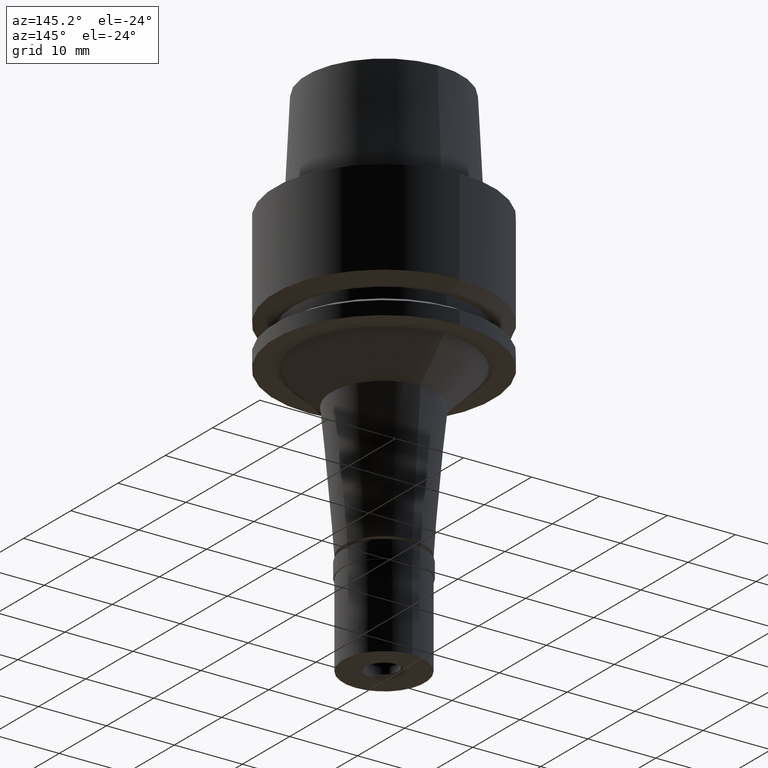
[diagram: clean part render]
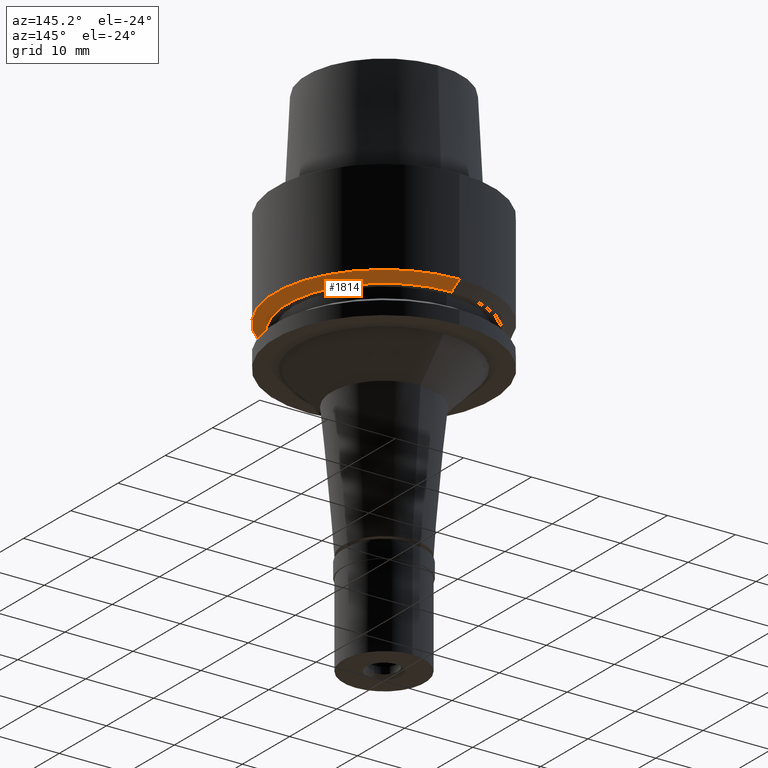
[diagram: same view with one face highlighted and labeled with its STEP entity id]
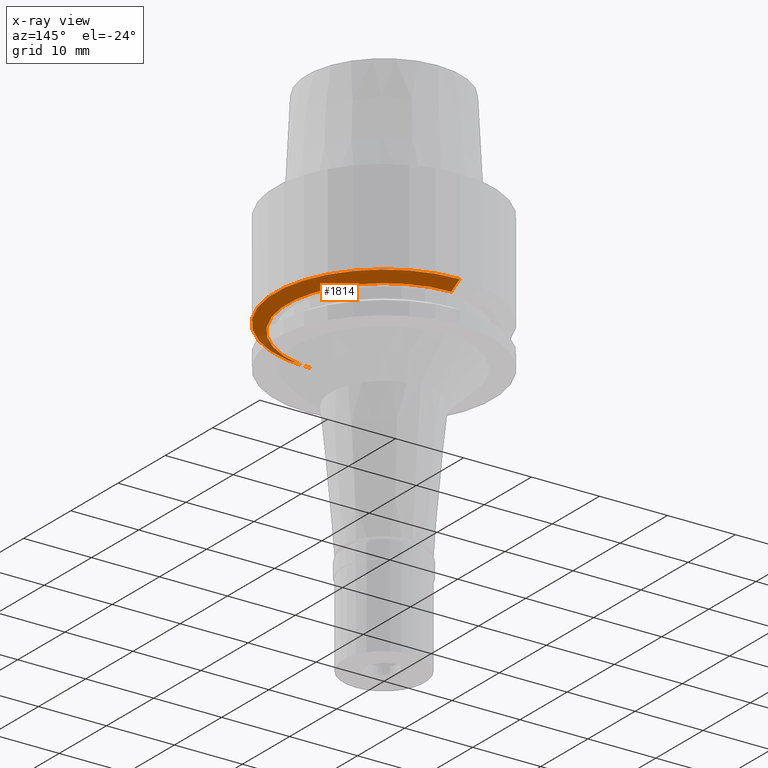
[diagram: x-ray of the same camera — body ghosted, the highlighted face saturated]
A machine part, auxiliary view. The second image highlights one B-rep face of the part: STEP entity #1814.
The next image is the same camera in x-ray: the body ghosted, the highlighted face saturated — about 5% of this face is hidden behind the body in this view.
In plain terms, the highlighted conical surface has half-angle 60 deg.
Its self-contained STEP definition (entity closure, byte-faithful):
#50 = EDGE_LOOP ( 'NONE', ( #1761, #742, #1051, #190 ) ) ;
#117 = CARTESIAN_POINT ( 'NONE',  ( 0.0000000000000000000, -14.23205080756999941, -15.00000000000000000 ) ) ;
#178 = FACE_OUTER_BOUND ( 'NONE', #50, .T. ) ;
#190 = ORIENTED_EDGE ( 'NONE', *, *, #2535, .F. ) ;
#223 = VERTEX_POINT ( 'NONE', #2178 ) ;
#371 = DIRECTION ( 'NONE',  ( 0.0000000000000000000, 0.0000000000000000000, 1.000000000000000000 ) ) ;
#435 = EDGE_CURVE ( 'NONE', #1391, #1539, #674, .T. ) ;
#600 = DIRECTION ( 'NONE',  ( 0.0000000000000000000, 1.000000000000000000, 0.0000000000000000000 ) ) ;
#674 = CIRCLE ( 'NONE', #2461, 14.23205080756999941 ) ;
#712 = CARTESIAN_POINT ( 'NONE',  ( 0.0000000000000000000, 16.00000000000000000, -13.97927405783999966 ) ) ;
#742 = ORIENTED_EDGE ( 'NONE', *, *, #1077, .T. ) ;
#777 = LINE ( 'NONE', #1199, #1640 ) ;
#780 = VECTOR ( 'NONE', #949, 1000.000000000000000 ) ;
#949 = DIRECTION ( 'NONE',  ( 0.0000000000000000000, -0.8660254037847886499, -0.4999999999993937627 ) ) ;
#982 = DIRECTION ( 'NONE',  ( 0.0000000000000000000, 0.8660254037847886499, -0.4999999999993937627 ) ) ;
#1007 = CARTESIAN_POINT ( 'NONE',  ( 0.0000000000000000000, 0.0000000000000000000, -14.48963702891999894 ) ) ;
#1051 = ORIENTED_EDGE ( 'NONE', *, *, #435, .T. ) ;
#1077 = EDGE_CURVE ( 'NONE', #2356, #1391, #777, .T. ) ;
#1197 = DIRECTION ( 'NONE',  ( 0.0000000000000000000, -1.000000000000000000, 0.0000000000000000000 ) ) ;
#1199 = CARTESIAN_POINT ( 'NONE',  ( 0.0000000000000000000, -16.00000000000000000, -13.97927405783999966 ) ) ;
#1223 = AXIS2_PLACEMENT_3D ( 'NONE', #1007, #2462, #600 ) ;
#1390 = LINE ( 'NONE', #712, #780 ) ;
#1391 = VERTEX_POINT ( 'NONE', #117 ) ;
#1418 = CARTESIAN_POINT ( 'NONE',  ( 0.0000000000000000000, -16.00000000000000000, -13.97927405783999966 ) ) ;
#1422 = CARTESIAN_POINT ( 'NONE',  ( 0.0000000000000000000, 0.0000000000000000000, -15.00000000000000000 ) ) ;
#1539 = VERTEX_POINT ( 'NONE', #2140 ) ;
#1640 = VECTOR ( 'NONE', #982, 1000.000000000000000 ) ;
#1761 = ORIENTED_EDGE ( 'NONE', *, *, #1968, .F. ) ;
#1814 = ADVANCED_FACE ( 'NONE', ( #178 ), #2103, .T. ) ;
#1968 = EDGE_CURVE ( 'NONE', #2356, #223, #2441, .T. ) ;
#2061 = AXIS2_PLACEMENT_3D ( 'NONE', #2260, #2520, #2068 ) ;
#2068 = DIRECTION ( 'NONE',  ( 0.0000000000000000000, -1.000000000000000000, 0.0000000000000000000 ) ) ;
#2103 = CONICAL_SURFACE ( 'NONE', #1223, 15.11602540378000015, 1.047197551196400456 ) ;
#2140 = CARTESIAN_POINT ( 'NONE',  ( 0.0000000000000000000, 14.23205080756999941, -15.00000000000000000 ) ) ;
#2178 = CARTESIAN_POINT ( 'NONE',  ( 0.0000000000000000000, 16.00000000000000000, -13.97927405783999966 ) ) ;
#2260 = CARTESIAN_POINT ( 'NONE',  ( 0.0000000000000000000, 0.0000000000000000000, -13.97927405783999966 ) ) ;
#2356 = VERTEX_POINT ( 'NONE', #1418 ) ;
#2441 = CIRCLE ( 'NONE', #2061, 16.00000000000000000 ) ;
#2461 = AXIS2_PLACEMENT_3D ( 'NONE', #1422, #371, #1197 ) ;
#2462 = DIRECTION ( 'NONE',  ( 0.0000000000000000000, 0.0000000000000000000, 1.000000000000000000 ) ) ;
#2520 = DIRECTION ( 'NONE',  ( 0.0000000000000000000, 0.0000000000000000000, 1.000000000000000000 ) ) ;
#2535 = EDGE_CURVE ( 'NONE', #223, #1539, #1390, .T. ) ;